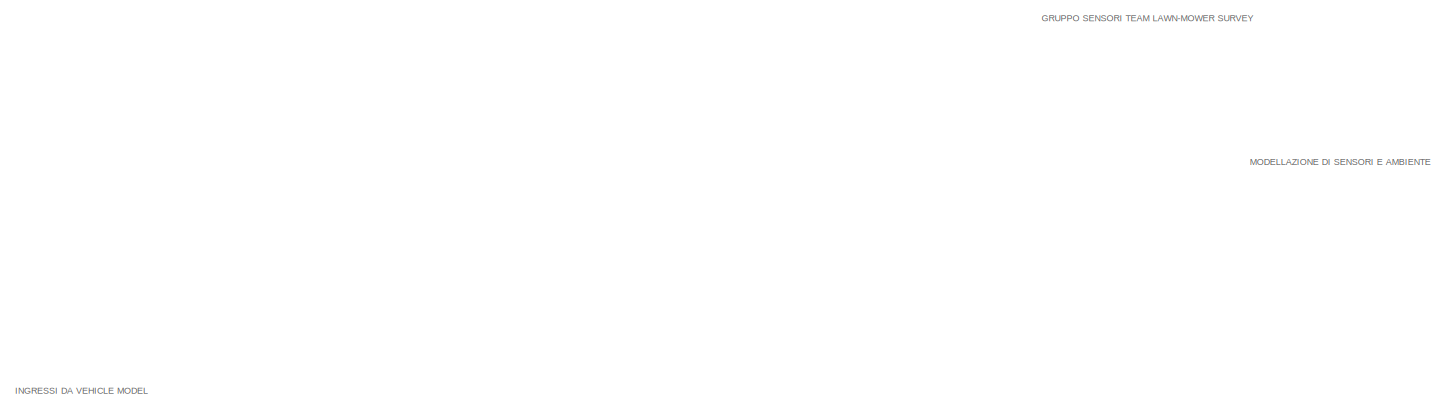
[diagram: root canvas - part 1/7, top left region]
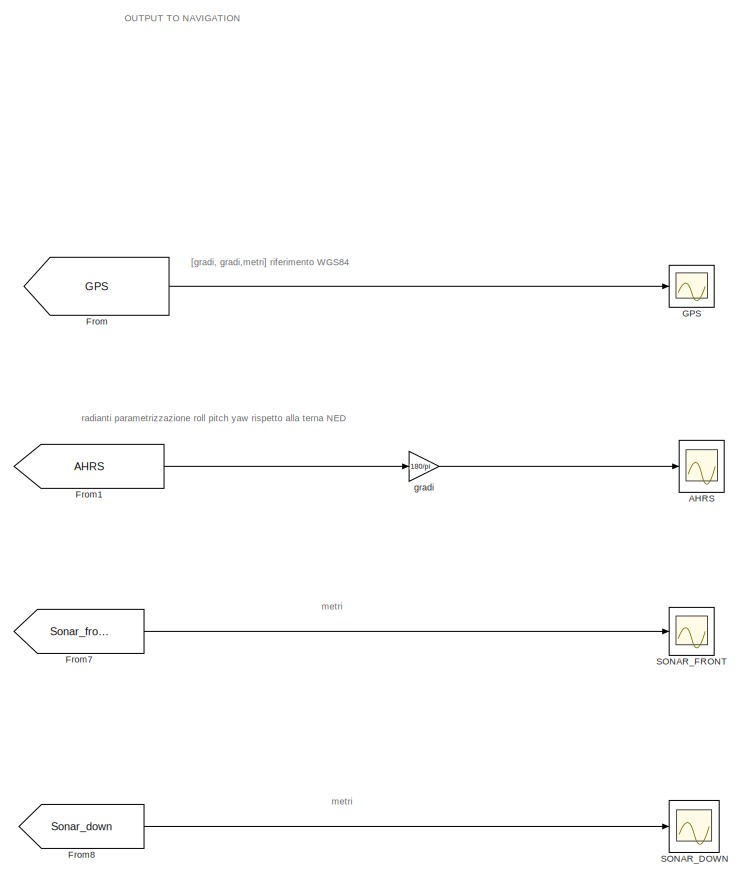
[diagram: root canvas - part 2/7, top right region]
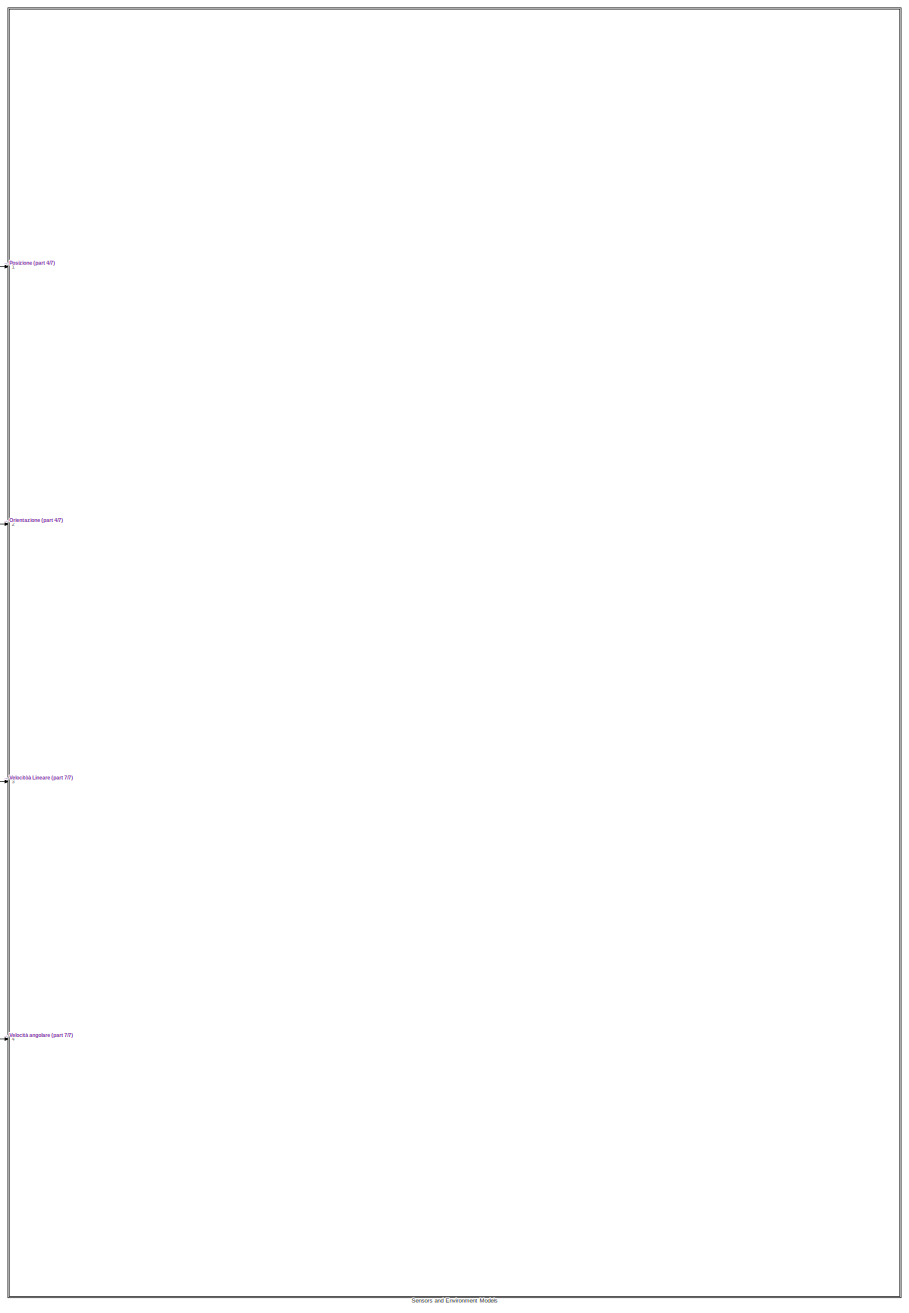
[diagram: root canvas - part 3/7, center side, full height]
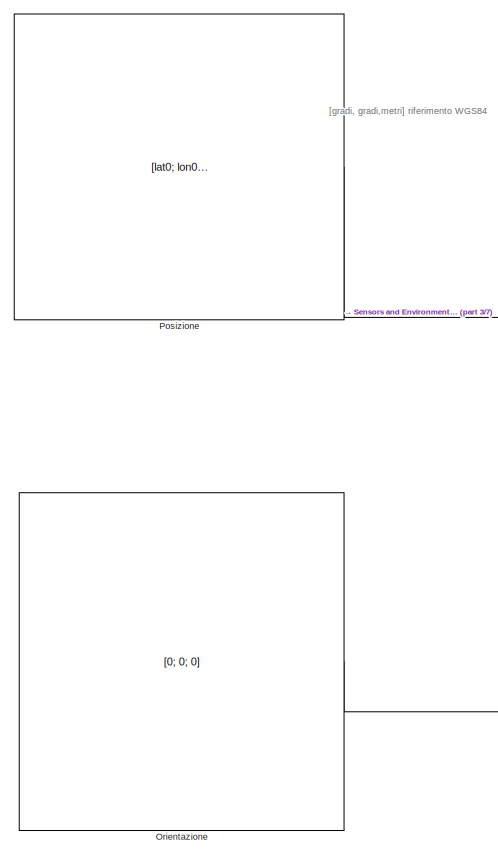
[diagram: root canvas - part 4/7, middle left region]
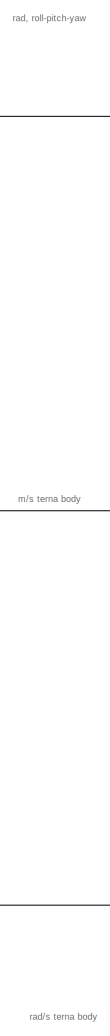
[diagram: root canvas - part 5/7, bottom left region]
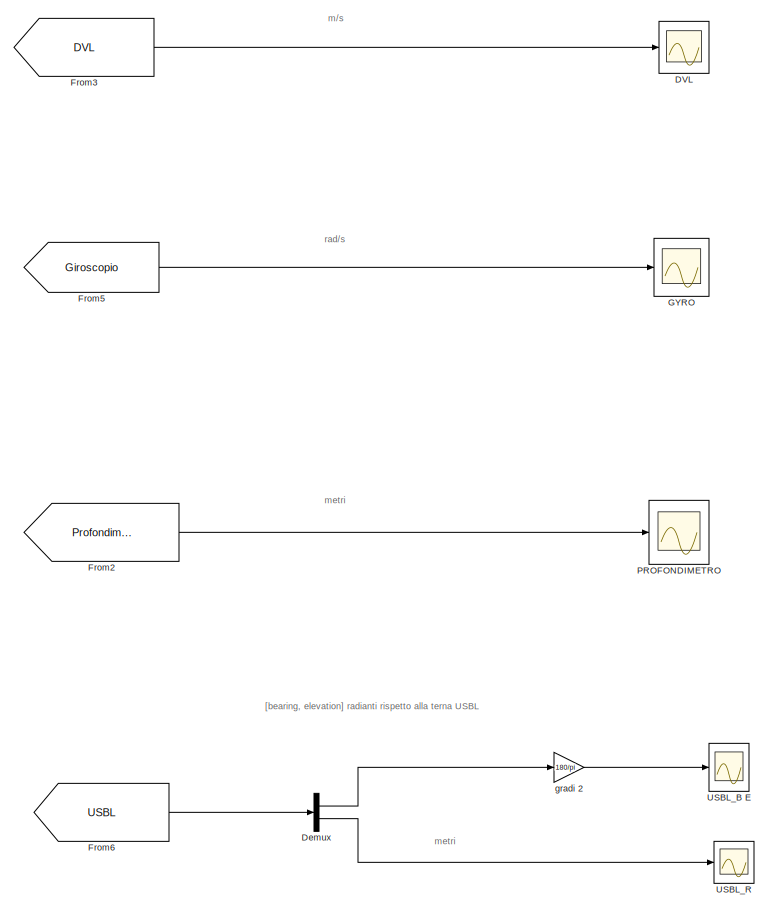
[diagram: root canvas - part 6/7, bottom right region]
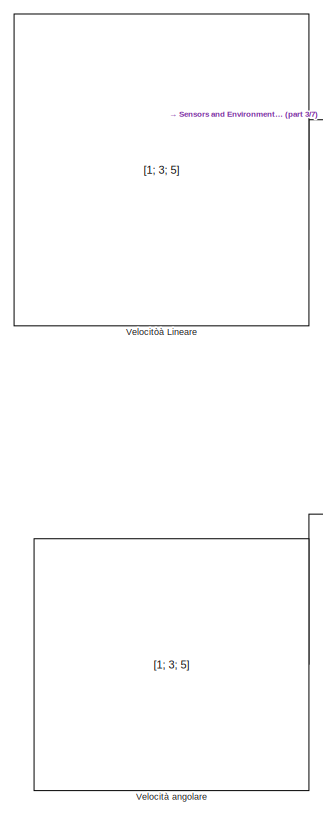
[diagram: root canvas - part 7/7, bottom left region]
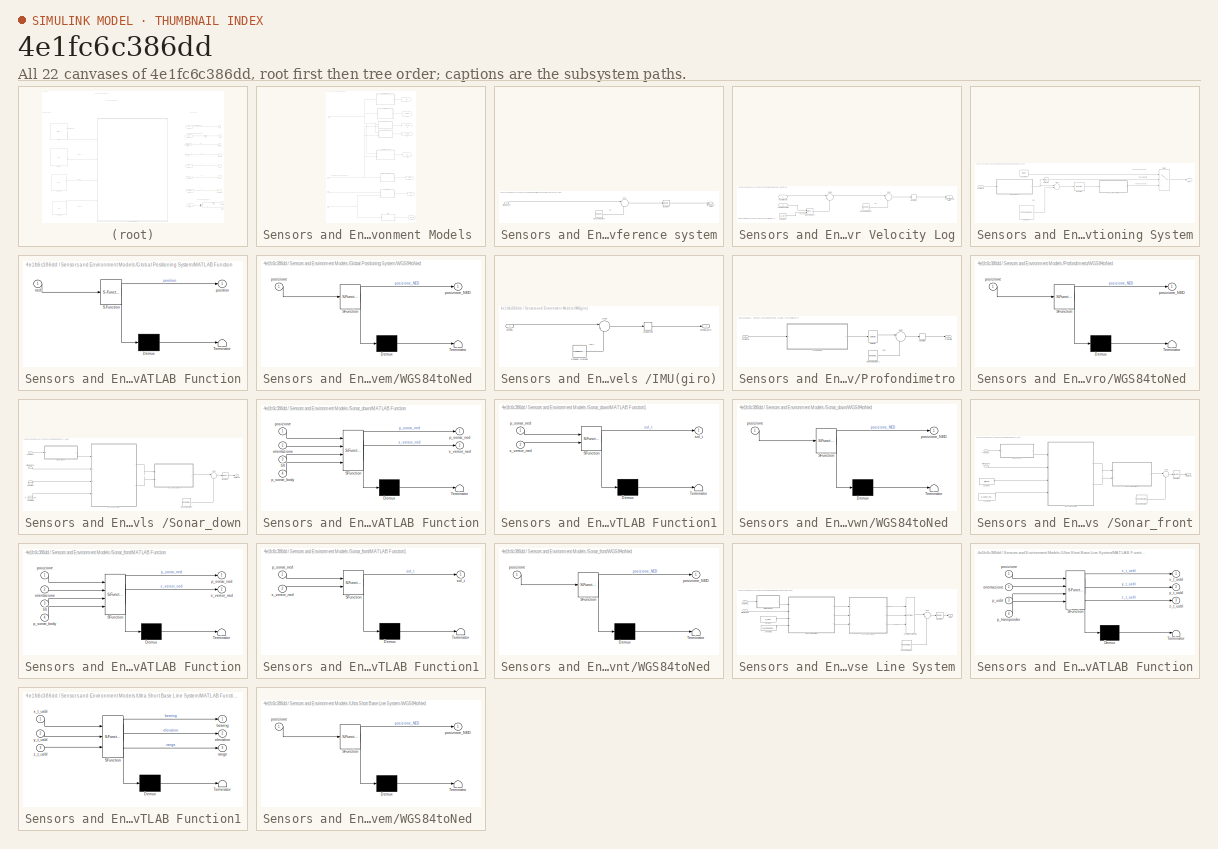
[diagram: thumbnail index - all 22 canvases of the model, root first then tree order]
MODEL slx_4e1fc6c386dd
KIND model
CONFIG AbsTol = auto
CONFIG EnableMultiTasking = on
CONFIG FixedStep = 0.1
CONFIG MaxStep = auto
CONFIG MinStep = auto
CONFIG RelTol = 1e-3
CONFIG SampleTimeConstraint = Unconstrained
CONFIG Solver = VariableStepAuto
CONFIG SolverName = VariableStepAuto
CONFIG StartTime = 0.0
CONFIG StopTime = 5
BLOCK [Constant]  Velocità angolare
  SampleTime = 0.1
  Value = [1; 3; 5]
  VectorParams1D = off
BLOCK [Scope] AHRS
  Floating = off
  NumInputPorts = 1
  Ports = [1]
  ScopeSpecificationString = Simulink.scopes.TimeScopeBlockCfg('CurrentConfiguration', extmgr.ConfigurationSet(extmgr.Configuration('Core','General UI',true),extmgr.Configuration('Core','Source UI',true),extmgr.Configuration('Sources','WiredSimulink',true,'DataLoggingVariableName','ScopeData5'),extmgr.Configuration('Visuals','Time Domain',true,'SerializedDisplays',{struct('MinYLimReal','-2.965','MaxYLimReal','2.685','YLabelRe...<+1495ch>
BLOCK [Scope] DVL
  Floating = off
  NumInputPorts = 1
  Ports = [1]
  ScopeSpecificationString = Simulink.scopes.TimeScopeBlockCfg('CurrentConfiguration', extmgr.ConfigurationSet(extmgr.Configuration('Core','General UI',true),extmgr.Configuration('Core','Source UI',true),extmgr.Configuration('Sources','WiredSimulink',true,'DataLoggingVariableName','ScopeData4'),extmgr.Configuration('Visuals','Time Domain',true,'SerializedDisplays',{struct('MinYLimReal','1.071','MaxYLimReal','4.781','YLabelRea...<+1438ch>
BLOCK [Demux] Demux
  DisplayOption = bar
  Outputs = 2
  Ports = [1, 2]
BLOCK [From] From
  GotoTag = GPS
  TagVisibility = global
BLOCK [From] From1
  GotoTag = AHRS
  TagVisibility = global
BLOCK [From] From2
  GotoTag = Profondimetro
  TagVisibility = global
BLOCK [From] From3
  GotoTag = DVL
  TagVisibility = global
BLOCK [From] From5
  GotoTag = Giroscopio
  TagVisibility = global
BLOCK [From] From6
  GotoTag = USBL
  TagVisibility = global
BLOCK [From] From7
  GotoTag = Sonar_front
  TagVisibility = global
BLOCK [From] From8
  GotoTag = Sonar_down
  TagVisibility = global
BLOCK [Scope] GPS
  Floating = off
  NumInputPorts = 1
  Ports = [1]
  ScopeSpecificationString = Simulink.scopes.TimeScopeBlockCfg('CurrentConfiguration', extmgr.ConfigurationSet(extmgr.Configuration('Core','General UI',true),extmgr.Configuration('Core','Source UI',true),extmgr.Configuration('Sources','WiredSimulink',true,'DataLoggingVariableName','ScopeData8'),extmgr.Configuration('Visuals','Time Domain',true,'SerializedDisplays',{struct('MinYLimReal','-8.02723','MaxYLimReal','47.91165','YLa...<+1519ch>
BLOCK [Scope] GYRO
  Floating = off
  NumInputPorts = 1
  Ports = [1]
  ScopeSpecificationString = Simulink.scopes.TimeScopeBlockCfg('CurrentConfiguration', extmgr.ConfigurationSet(extmgr.Configuration('Core','General UI',true),extmgr.Configuration('Core','Source UI',true),extmgr.Configuration('Sources','WiredSimulink',true,'DataLoggingVariableName','ScopeData3'),extmgr.Configuration('Visuals','Time Domain',true,'SerializedDisplays',{struct('MinYLimReal','0.48786','MaxYLimReal','5.51223','YLabe...<+1465ch>
BLOCK [Constant] Orientazione
  SampleTime = 0.1
  Value = [0; 0; 0]
  VectorParams1D = off
BLOCK [Scope] PROFONDIMETRO
  Floating = off
  NumInputPorts = 1
  Ports = [1]
  ScopeSpecificationString = Simulink.scopes.TimeScopeBlockCfg('CurrentConfiguration', extmgr.ConfigurationSet(extmgr.Configuration('Core','General UI',true),extmgr.Configuration('Core','Source UI',true),extmgr.Configuration('Sources','WiredSimulink',true,'DataLoggingVariableName','ScopeData2'),extmgr.Configuration('Visuals','Time Domain',true,'SerializedDisplays',{struct('MinYLimReal','-0.17125','MaxYLimReal','0.14125','YLab...<+1397ch>
BLOCK [Constant] Posizione
  Value = [lat0; lon0; h0]
  VectorParams1D = off
BLOCK [Scope] SONAR_DOWN
  Floating = off
  NumInputPorts = 1
  Ports = [1]
  ScopeSpecificationString = Simulink.scopes.TimeScopeBlockCfg('CurrentConfiguration', extmgr.ConfigurationSet(extmgr.Configuration('Core','General UI',true),extmgr.Configuration('Core','Source UI',true),extmgr.Configuration('Sources','WiredSimulink',true,'DataLoggingVariableName','ScopeData7'),extmgr.Configuration('Visuals','Time Domain',true,'SerializedDisplays',{struct('MinYLimReal','36.4725','MaxYLimReal','37.0875','YLabe...<+1695ch>
BLOCK [Scope] SONAR_FRONT
  Floating = off
  NumInputPorts = 1
  Ports = [1]
  ScopeSpecificationString = Simulink.scopes.TimeScopeBlockCfg('CurrentConfiguration', extmgr.ConfigurationSet(extmgr.Configuration('Core','General UI',true),extmgr.Configuration('Core','Source UI',true),extmgr.Configuration('Sources','WiredSimulink',true,'DataLoggingVariableName','ScopeData6'),extmgr.Configuration('Visuals','Time Domain',true,'SerializedDisplays',{struct('MinYLimReal','51.28725','MaxYLimReal','51.89475','YLa...<+1401ch>
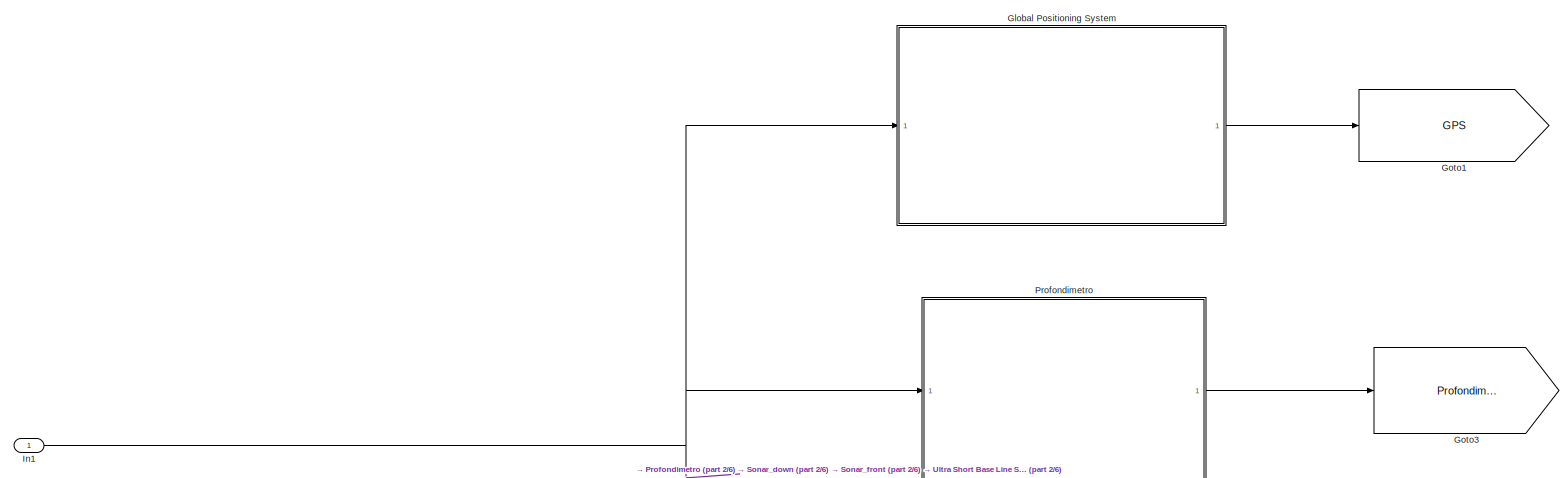
[diagram: Sensors and Environment Models  - part 1/6, full width, top band]
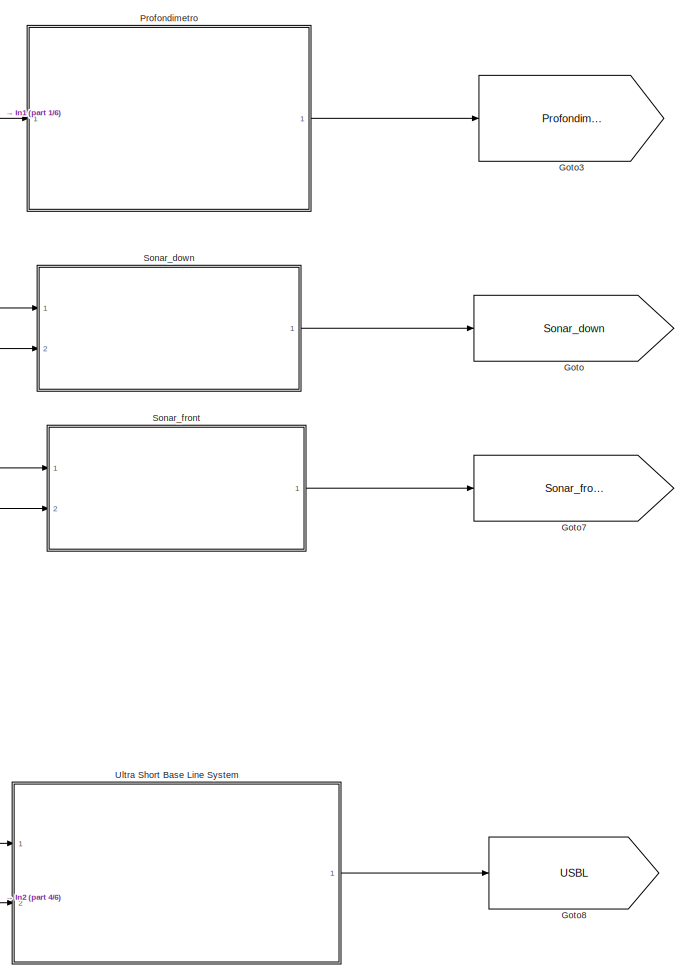
[diagram: Sensors and Environment Models  - part 2/6, top right region]
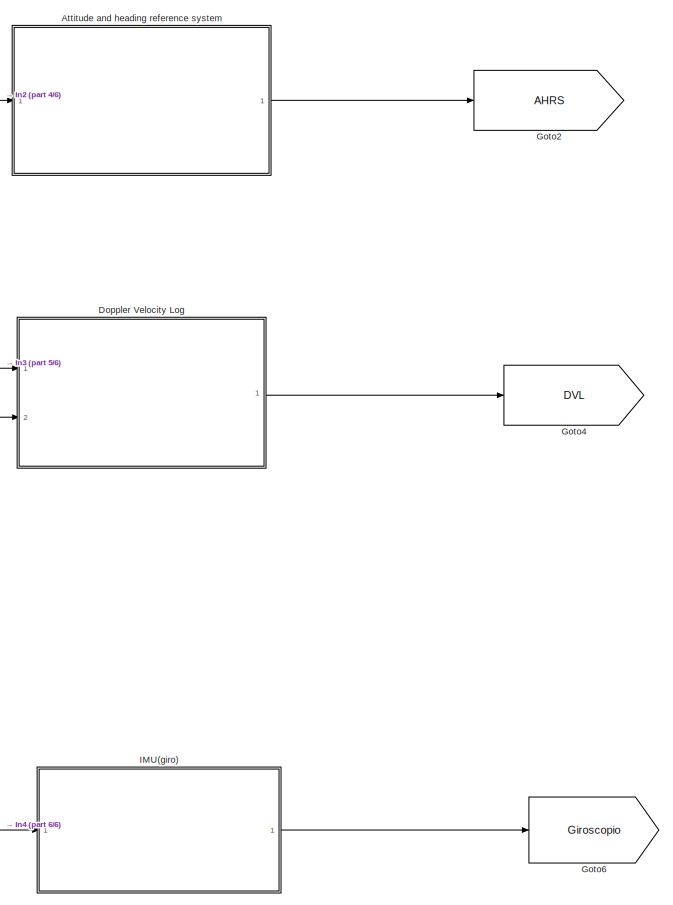
[diagram: Sensors and Environment Models  - part 3/6, bottom right region]
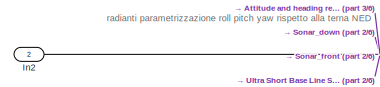
[diagram: Sensors and Environment Models  - part 4/6, middle left region]
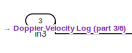
[diagram: Sensors and Environment Models  - part 5/6, bottom left region]
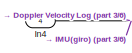
[diagram: Sensors and Environment Models  - part 6/6, bottom left region]
BLOCK [SubSystem] Sensors and Environment Models 
  Ports = [4]
  RequestExecContextInheritance = off
BLOCK [SubSystem] Sensors and Environment Models /Attitude and heading reference system
  Ports = [1, 1]
  RequestExecContextInheritance = off
BLOCK [Inport] Sensors and Environment Models /Attitude and heading reference system/Orientazione
  IconDisplay = Port number
  SampleTime = Ts_ahrs
BLOCK [Outport] Sensors and Environment Models /Attitude and heading reference system/Orientazione_AHRS
  IconDisplay = Port number
BLOCK [Quantizer] Sensors and Environment Models /Attitude and heading reference system/Quantizer
  QuantizationInterval = res_ahrs
BLOCK [RandomNumber] Sensors and Environment Models /Attitude and heading reference system/Random Number
  SampleTime = Ts_ahrs
  Seed = [26; 78; 90]
  Variance = var_ahrs
  VectorParams1D = off
BLOCK [Sum] Sensors and Environment Models /Attitude and heading reference system/Sum
  IconShape = round
  InputSameDT = off
  Inputs = |++
  OutDataTypeStr = Inherit: Inherit via internal rule
  Ports = [2, 1]
  SaturateOnIntegerOverflow = off
BLOCK [SubSystem] Sensors and Environment Models /Doppler Velocity Log
  Ports = [2, 1]
  RequestExecContextInheritance = off
BLOCK [Constant] Sensors and Environment Models /Doppler Velocity Log/Constant
  Value = p_dvl
  VectorParams1D = off
BLOCK [Reference] Sensors and Environment Models /Doppler Velocity Log/Cross Product  REF=vrlib/Utilities/Cross Product
  Ports = [2, 1]
  SourceBlock = vrlib/Utilities/Cross Product
  SourceProductBaseCode = VR
  SourceProductName = Simulink 3D Animation
  SourceType = Cross Product
BLOCK [Quantizer] Sensors and Environment Models /Doppler Velocity Log/Quantizer
  QuantizationInterval = res_dvl
BLOCK [RandomNumber] Sensors and Environment Models /Doppler Velocity Log/Random Number
  SampleTime = Ts_dvl
  Seed = [21, 68, 10]
  Variance = var_dvl
BLOCK [Sum] Sensors and Environment Models /Doppler Velocity Log/Sum
  IconShape = round
  InputSameDT = off
  Inputs = |++
  OutDataTypeStr = Inherit: Inherit via internal rule
  Ports = [2, 1]
  SaturateOnIntegerOverflow = off
BLOCK [Sum] Sensors and Environment Models /Doppler Velocity Log/Sum1
  IconShape = round
  InputSameDT = off
  Inputs = |++
  OutDataTypeStr = Inherit: Inherit via internal rule
  Ports = [2, 1]
  SaturateOnIntegerOverflow = off
BLOCK [Inport] Sensors and Environment Models /Doppler Velocity Log/Velocità lineare
  IconDisplay = Port number
  SampleTime = Ts_dvl
BLOCK [Inport] Sensors and Environment Models /Doppler Velocity Log/velocità angolare
  IconDisplay = Port number
  Port = 2
  SampleTime = Ts_dvl
BLOCK [Outport] Sensors and Environment Models /Doppler Velocity Log/velocità lineare DVL
  IconDisplay = Port number
BLOCK [SubSystem] Sensors and Environment Models /Global Positioning System
  Ports = [1, 1]
  RequestExecContextInheritance = off
BLOCK [Constant] Sensors and Environment Models /Global Positioning System/Constant
  Value = [0;0;0]
  VectorParams1D = off
BLOCK [Outport] Sensors and Environment Models /Global Positioning System/GPS
  IconDisplay = Port number
BLOCK [SubSystem] Sensors and Environment Models /Global Positioning System/MATLAB Function
  ErrorFcn = Stateflow.Translate.translate
  PermitHierarchicalResolution = ExplicitOnly
  Ports = [1, 1]
  RequestExecContextInheritance = off
  SFBlockType = MATLAB Function
  TreatAsAtomicUnit = on
BLOCK [Demux] Sensors and Environment Models /Global Positioning System/MATLAB Function/ Demux 
  Outputs = 1
  Ports = [1, 1]
BLOCK [S-Function] Sensors and Environment Models /Global Positioning System/MATLAB Function/ SFunction 
  EnableBusSupport = on
  FunctionName = sf_sfun
  PortCounts = [1 2]
  Ports = [1, 2]
  SFcnIsStateOwnerBlock = off
  SFunctionDeploymentMode = off
  Tag = Stateflow S-Function simusink 1
BLOCK [Terminator] Sensors and Environment Models /Global Positioning System/MATLAB Function/ Terminator 
BLOCK [Inport] Sensors and Environment Models /Global Positioning System/MATLAB Function/ned
  IconDisplay = Port number
BLOCK [Outport] Sensors and Environment Models /Global Positioning System/MATLAB Function/position
  IconDisplay = Port number
BLOCK [Inport] Sensors and Environment Models /Global Positioning System/Posizione
  IconDisplay = Port number
  SampleTime = Ts_gps
BLOCK [Quantizer] Sensors and Environment Models /Global Positioning System/Quantizer
  QuantizationInterval = res_gps
BLOCK [Selector] Sensors and Environment Models /Global Positioning System/Selector
  IndexOptions = Index vector (dialog)
  Indices = [3]
  InputPortWidth = 3
  OutputSizes = 1
  Ports = [1, 1]
BLOCK [Sum] Sensors and Environment Models /Global Positioning System/Sum
  InputSameDT = off
  Inputs = |++
  OutDataTypeStr = Inherit: Inherit via internal rule
  Ports = [2, 1]
  SaturateOnIntegerOverflow = off
BLOCK [Switch] Sensors and Environment Models /Global Positioning System/Switch
  Criteria = u2 > Threshold
  InputSameDT = off
  SaturateOnIntegerOverflow = off
  Threshold = 0.30
BLOCK [SubSystem] Sensors and Environment Models /Global Positioning System/WGS84toNed 
  ErrorFcn = Stateflow.Translate.translate
  PermitHierarchicalResolution = ExplicitOnly
  Ports = [1, 1]
  RequestExecContextInheritance = off
  SFBlockType = MATLAB Function
  TreatAsAtomicUnit = on
BLOCK [Demux] Sensors and Environment Models /Global Positioning System/WGS84toNed / Demux 
  Outputs = 1
  Ports = [1, 1]
BLOCK [S-Function] Sensors and Environment Models /Global Positioning System/WGS84toNed / SFunction 
  EnableBusSupport = on
  FunctionName = sf_sfun
  PortCounts = [1 2]
  Ports = [1, 2]
  SFcnIsStateOwnerBlock = off
  SFunctionDeploymentMode = off
  Tag = Stateflow S-Function simusink 2
BLOCK [Terminator] Sensors and Environment Models /Global Positioning System/WGS84toNed / Terminator 
BLOCK [Inport] Sensors and Environment Models /Global Positioning System/WGS84toNed /posizione
  IconDisplay = Port number
BLOCK [Outport] Sensors and Environment Models /Global Positioning System/WGS84toNed /posizione_NED
  IconDisplay = Port number
BLOCK [RandomNumber] Sensors and Environment Models /Global Positioning System/rumore GPS
  SampleTime = Ts_gps
  Seed = [18;40;93]
  Variance = var_gps
  VectorParams1D = off
BLOCK [Goto] Sensors and Environment Models /Goto
  GotoTag = Sonar_down
  TagVisibility = global
BLOCK [Goto] Sensors and Environment Models /Goto1
  GotoTag = GPS
  TagVisibility = global
BLOCK [Goto] Sensors and Environment Models /Goto2
  GotoTag = AHRS
  TagVisibility = global
BLOCK [Goto] Sensors and Environment Models /Goto3
  GotoTag = Profondimetro
  TagVisibility = global
BLOCK [Goto] Sensors and Environment Models /Goto4
  GotoTag = DVL
  TagVisibility = global
BLOCK [Goto] Sensors and Environment Models /Goto6
  GotoTag = Giroscopio
  TagVisibility = global
BLOCK [Goto] Sensors and Environment Models /Goto7
  GotoTag = Sonar_front
  TagVisibility = global
BLOCK [Goto] Sensors and Environment Models /Goto8
  GotoTag = USBL
  TagVisibility = global
BLOCK [SubSystem] Sensors and Environment Models /IMU(giro)
  Ports = [1, 1]
  RequestExecContextInheritance = off
BLOCK [Quantizer] Sensors and Environment Models /IMU(giro)/Quantizer
  QuantizationInterval = res_giroscopio
BLOCK [RandomNumber] Sensors and Environment Models /IMU(giro)/Random Number
  SampleTime = Ts_giroscopio
  Seed = [1; 5; 3]
  Variance = var_giroscopio
  VectorParams1D = off
BLOCK [Sum] Sensors and Environment Models /IMU(giro)/Sum
  IconShape = round
  InputSameDT = off
  Inputs = |++
  OutDataTypeStr = Inherit: Inherit via internal rule
  Ports = [2, 1]
  SaturateOnIntegerOverflow = off
BLOCK [Inport] Sensors and Environment Models /IMU(giro)/omega
  IconDisplay = Port number
  SampleTime = Ts_giroscopio
BLOCK [Outport] Sensors and Environment Models /IMU(giro)/omega_giro
  IconDisplay = Port number
BLOCK [Inport] Sensors and Environment Models /In1
  IconDisplay = Port number
BLOCK [Inport] Sensors and Environment Models /In2
  IconDisplay = Port number
  Port = 2
BLOCK [Inport] Sensors and Environment Models /In3
  IconDisplay = Port number
  Port = 3
BLOCK [Inport] Sensors and Environment Models /In4
  IconDisplay = Port number
  Port = 4
BLOCK [SubSystem] Sensors and Environment Models /Profondimetro
  Ports = [1, 1]
  RequestExecContextInheritance = off
BLOCK [Inport] Sensors and Environment Models /Profondimetro/Posizione
  IconDisplay = Port number
  SampleTime = Ts_profondimetro
BLOCK [Outport] Sensors and Environment Models /Profondimetro/Profondità
  IconDisplay = Port number
BLOCK [Quantizer] Sensors and Environment Models /Profondimetro/Quantizer
  QuantizationInterval = res_profondimetro
BLOCK [RandomNumber] Sensors and Environment Models /Profondimetro/Random Number1
  SampleTime = Ts_profondimetro
  Seed = 85
  Variance = var_profondimetro
  VectorParams1D = off
BLOCK [Selector] Sensors and Environment Models /Profondimetro/Selector
  IndexOptions = Index vector (dialog)
  Indices = [ 3]
  InputPortWidth = 3
  OutputSizes = 1
  Ports = [1, 1]
BLOCK [Sum] Sensors and Environment Models /Profondimetro/Sum1
  IconShape = round
  InputSameDT = off
  Inputs = |++
  OutDataTypeStr = Inherit: Inherit via internal rule
  Ports = [2, 1]
  SaturateOnIntegerOverflow = off
BLOCK [SubSystem] Sensors and Environment Models /Profondimetro/WGS84toNed 
  ErrorFcn = Stateflow.Translate.translate
  PermitHierarchicalResolution = ExplicitOnly
  Ports = [1, 1]
  RequestExecContextInheritance = off
  SFBlockType = MATLAB Function
  TreatAsAtomicUnit = on
BLOCK [Demux] Sensors and Environment Models /Profondimetro/WGS84toNed / Demux 
  Outputs = 1
  Ports = [1, 1]
BLOCK [S-Function] Sensors and Environment Models /Profondimetro/WGS84toNed / SFunction 
  EnableBusSupport = on
  FunctionName = sf_sfun
  PortCounts = [1 2]
  Ports = [1, 2]
  SFcnIsStateOwnerBlock = off
  SFunctionDeploymentMode = off
  Tag = Stateflow S-Function simusink 3
BLOCK [Terminator] Sensors and Environment Models /Profondimetro/WGS84toNed / Terminator 
BLOCK [Inport] Sensors and Environment Models /Profondimetro/WGS84toNed /posizione
  IconDisplay = Port number
BLOCK [Outport] Sensors and Environment Models /Profondimetro/WGS84toNed /posizione_NED
  IconDisplay = Port number
BLOCK [SubSystem] Sensors and Environment Models /Sonar_down
  Ports = [2, 1]
  RequestExecContextInheritance = off
BLOCK [Constant] Sensors and Environment Models /Sonar_down/Constant
  SampleTime = Ts_sonar_down
  Value = tilt_down
  VectorParams1D = off
BLOCK [Constant] Sensors and Environment Models /Sonar_down/Constant1
  SampleTime = Ts_sonar_down
  Value = p_sonar_down
  VectorParams1D = off
BLOCK [Outport] Sensors and Environment Models /Sonar_down/Distanza
  IconDisplay = Port number
BLOCK [SubSystem] Sensors and Environment Models /Sonar_down/MATLAB Function
  ErrorFcn = Stateflow.Translate.translate
  PermitHierarchicalResolution = ExplicitOnly
  Ports = [4, 2]
  RequestExecContextInheritance = off
  SFBlockType = MATLAB Function
  TreatAsAtomicUnit = on
BLOCK [Demux] Sensors and Environment Models /Sonar_down/MATLAB Function/ Demux 
  Outputs = 1
  Ports = [1, 1]
BLOCK [S-Function] Sensors and Environment Models /Sonar_down/MATLAB Function/ SFunction 
  EnableBusSupport = on
  FunctionName = sf_sfun
  PortCounts = [4 3]
  Ports = [4, 3]
  SFcnIsStateOwnerBlock = off
  SFunctionDeploymentMode = off
  Tag = Stateflow S-Function simusink 4
BLOCK [Terminator] Sensors and Environment Models /Sonar_down/MATLAB Function/ Terminator 
BLOCK [Inport] Sensors and Environment Models /Sonar_down/MATLAB Function/orientazione
  IconDisplay = Port number
  Port = 2
BLOCK [Inport] Sensors and Environment Models /Sonar_down/MATLAB Function/p_sonar_body
  IconDisplay = Port number
  Port = 4
BLOCK [Outport] Sensors and Environment Models /Sonar_down/MATLAB Function/p_sonar_ned
  IconDisplay = Port number
BLOCK [Inport] Sensors and Environment Models /Sonar_down/MATLAB Function/posizione
  IconDisplay = Port number
BLOCK [Outport] Sensors and Environment Models /Sonar_down/MATLAB Function/s_versor_ned
  IconDisplay = Port number
  Port = 2
BLOCK [Inport] Sensors and Environment Models /Sonar_down/MATLAB Function/tilt
  IconDisplay = Port number
  Port = 3
BLOCK [SubSystem] Sensors and Environment Models /Sonar_down/MATLAB Function1
  ErrorFcn = Stateflow.Translate.translate
  PermitHierarchicalResolution = ExplicitOnly
  Ports = [2, 1]
  RequestExecContextInheritance = off
  SFBlockType = MATLAB Function
  TreatAsAtomicUnit = on
BLOCK [Demux] Sensors and Environment Models /Sonar_down/MATLAB Function1/ Demux 
  Outputs = 1
  Ports = [1, 1]
BLOCK [S-Function] Sensors and Environment Models /Sonar_down/MATLAB Function1/ SFunction 
  EnableBusSupport = on
  FunctionName = sf_sfun
  PortCounts = [2 2]
  Ports = [2, 2]
  SFcnIsStateOwnerBlock = off
  SFunctionDeploymentMode = off
  Tag = Stateflow S-Function simusink 5
BLOCK [Terminator] Sensors and Environment Models /Sonar_down/MATLAB Function1/ Terminator 
BLOCK [Inport] Sensors and Environment Models /Sonar_down/MATLAB Function1/p_sonar_ned
  IconDisplay = Port number
BLOCK [Inport] Sensors and Environment Models /Sonar_down/MATLAB Function1/s_versor_ned
  IconDisplay = Port number
  Port = 2
BLOCK [Outport] Sensors and Environment Models /Sonar_down/MATLAB Function1/sol_t
  IconDisplay = Port number
BLOCK [Inport] Sensors and Environment Models /Sonar_down/Orientazione
  IconDisplay = Port number
  Port = 2
  SampleTime = Ts_sonar_down
BLOCK [Inport] Sensors and Environment Models /Sonar_down/Posizione
  IconDisplay = Port number
  SampleTime = Ts_sonar_down
BLOCK [Quantizer] Sensors and Environment Models /Sonar_down/Quantizer
  QuantizationInterval = res_sonar_down
BLOCK [RandomNumber] Sensors and Environment Models /Sonar_down/Random Number
  SampleTime = Ts_sonar_down
  Variance = var_sonar_down
  VectorParams1D = off
BLOCK [Sum] Sensors and Environment Models /Sonar_down/Sum
  IconShape = round
  InputSameDT = off
  Inputs = |++
  OutDataTypeStr = Inherit: Inherit via internal rule
  Ports = [2, 1]
  SaturateOnIntegerOverflow = off
BLOCK [SubSystem] Sensors and Environment Models /Sonar_down/WGS84toNed 
  ErrorFcn = Stateflow.Translate.translate
  PermitHierarchicalResolution = ExplicitOnly
  Ports = [1, 1]
  RequestExecContextInheritance = off
  SFBlockType = MATLAB Function
  TreatAsAtomicUnit = on
BLOCK [Demux] Sensors and Environment Models /Sonar_down/WGS84toNed / Demux 
  Outputs = 1
  Ports = [1, 1]
BLOCK [S-Function] Sensors and Environment Models /Sonar_down/WGS84toNed / SFunction 
  EnableBusSupport = on
  FunctionName = sf_sfun
  PortCounts = [1 2]
  Ports = [1, 2]
  SFcnIsStateOwnerBlock = off
  SFunctionDeploymentMode = off
  Tag = Stateflow S-Function simusink 6
BLOCK [Terminator] Sensors and Environment Models /Sonar_down/WGS84toNed / Terminator 
BLOCK [Inport] Sensors and Environment Models /Sonar_down/WGS84toNed /posizione
  IconDisplay = Port number
BLOCK [Outport] Sensors and Environment Models /Sonar_down/WGS84toNed /posizione_NED
  IconDisplay = Port number
BLOCK [SubSystem] Sensors and Environment Models /Sonar_front
  Ports = [2, 1]
  RequestExecContextInheritance = off
BLOCK [Constant] Sensors and Environment Models /Sonar_front/Constant
  SampleTime = Ts_sonar_front
  Value = tilt_front
  VectorParams1D = off
BLOCK [Constant] Sensors and Environment Models /Sonar_front/Constant1
  SampleTime = Ts_sonar_front
  Value = p_sonar_front
  VectorParams1D = off
BLOCK [Outport] Sensors and Environment Models /Sonar_front/Distanza
  IconDisplay = Port number
BLOCK [SubSystem] Sensors and Environment Models /Sonar_front/MATLAB Function
  ErrorFcn = Stateflow.Translate.translate
  PermitHierarchicalResolution = ExplicitOnly
  Ports = [4, 2]
  RequestExecContextInheritance = off
  SFBlockType = MATLAB Function
  TreatAsAtomicUnit = on
BLOCK [Demux] Sensors and Environment Models /Sonar_front/MATLAB Function/ Demux 
  Outputs = 1
  Ports = [1, 1]
BLOCK [S-Function] Sensors and Environment Models /Sonar_front/MATLAB Function/ SFunction 
  EnableBusSupport = on
  FunctionName = sf_sfun
  PortCounts = [4 3]
  Ports = [4, 3]
  SFcnIsStateOwnerBlock = off
  SFunctionDeploymentMode = off
  Tag = Stateflow S-Function simusink 7
BLOCK [Terminator] Sensors and Environment Models /Sonar_front/MATLAB Function/ Terminator 
BLOCK [Inport] Sensors and Environment Models /Sonar_front/MATLAB Function/orientazione
  IconDisplay = Port number
  Port = 2
BLOCK [Inport] Sensors and Environment Models /Sonar_front/MATLAB Function/p_sonar_body
  IconDisplay = Port number
  Port = 4
BLOCK [Outport] Sensors and Environment Models /Sonar_front/MATLAB Function/p_sonar_ned
  IconDisplay = Port number
BLOCK [Inport] Sensors and Environment Models /Sonar_front/MATLAB Function/posizione
  IconDisplay = Port number
BLOCK [Outport] Sensors and Environment Models /Sonar_front/MATLAB Function/s_versor_ned
  IconDisplay = Port number
  Port = 2
BLOCK [Inport] Sensors and Environment Models /Sonar_front/MATLAB Function/tilt
  IconDisplay = Port number
  Port = 3
BLOCK [SubSystem] Sensors and Environment Models /Sonar_front/MATLAB Function1
  ErrorFcn = Stateflow.Translate.translate
  PermitHierarchicalResolution = ExplicitOnly
  Ports = [2, 1]
  RequestExecContextInheritance = off
  SFBlockType = MATLAB Function
  TreatAsAtomicUnit = on
BLOCK [Demux] Sensors and Environment Models /Sonar_front/MATLAB Function1/ Demux 
  Outputs = 1
  Ports = [1, 1]
BLOCK [S-Function] Sensors and Environment Models /Sonar_front/MATLAB Function1/ SFunction 
  EnableBusSupport = on
  FunctionName = sf_sfun
  PortCounts = [2 2]
  Ports = [2, 2]
  SFcnIsStateOwnerBlock = off
  SFunctionDeploymentMode = off
  Tag = Stateflow S-Function simusink 8
BLOCK [Terminator] Sensors and Environment Models /Sonar_front/MATLAB Function1/ Terminator 
BLOCK [Inport] Sensors and Environment Models /Sonar_front/MATLAB Function1/p_sonar_ned
  IconDisplay = Port number
BLOCK [Inport] Sensors and Environment Models /Sonar_front/MATLAB Function1/s_versor_ned
  IconDisplay = Port number
  Port = 2
BLOCK [Outport] Sensors and Environment Models /Sonar_front/MATLAB Function1/sol_t
  IconDisplay = Port number
BLOCK [Inport] Sensors and Environment Models /Sonar_front/Orientazione
  IconDisplay = Port number
  Port = 2
  SampleTime = Ts_sonar_front
BLOCK [Inport] Sensors and Environment Models /Sonar_front/Posizione
  IconDisplay = Port number
  SampleTime = Ts_sonar_front
BLOCK [Quantizer] Sensors and Environment Models /Sonar_front/Quantizer
  QuantizationInterval = res_sonar_front
BLOCK [RandomNumber] Sensors and Environment Models /Sonar_front/Random Number
  SampleTime = Ts_sonar_front
  Variance = var_sonar_front
  VectorParams1D = off
BLOCK [Sum] Sensors and Environment Models /Sonar_front/Sum
  IconShape = round
  InputSameDT = off
  Inputs = |++
  OutDataTypeStr = Inherit: Inherit via internal rule
  Ports = [2, 1]
  SaturateOnIntegerOverflow = off
BLOCK [SubSystem] Sensors and Environment Models /Sonar_front/WGS84toNed 
  ErrorFcn = Stateflow.Translate.translate
  PermitHierarchicalResolution = ExplicitOnly
  Ports = [1, 1]
  RequestExecContextInheritance = off
  SFBlockType = MATLAB Function
  TreatAsAtomicUnit = on
BLOCK [Demux] Sensors and Environment Models /Sonar_front/WGS84toNed / Demux 
  Outputs = 1
  Ports = [1, 1]
BLOCK [S-Function] Sensors and Environment Models /Sonar_front/WGS84toNed / SFunction 
  EnableBusSupport = on
  FunctionName = sf_sfun
  PortCounts = [1 2]
  Ports = [1, 2]
  SFcnIsStateOwnerBlock = off
  SFunctionDeploymentMode = off
  Tag = Stateflow S-Function simusink 9
BLOCK [Terminator] Sensors and Environment Models /Sonar_front/WGS84toNed / Terminator 
BLOCK [Inport] Sensors and Environment Models /Sonar_front/WGS84toNed /posizione
  IconDisplay = Port number
BLOCK [Outport] Sensors and Environment Models /Sonar_front/WGS84toNed /posizione_NED
  IconDisplay = Port number
BLOCK [SubSystem] Sensors and Environment Models /Ultra Short Base Line System
  Ports = [2, 1]
  RequestExecContextInheritance = off
BLOCK [Outport] Sensors and Environment Models /Ultra Short Base Line System/BER
  IconDisplay = Port number
BLOCK [Constant] Sensors and Environment Models /Ultra Short Base Line System/Constant
  Value = p_usbl
  VectorParams1D = off
BLOCK [Constant] Sensors and Environment Models /Ultra Short Base Line System/Constant1
  Value = p_transponder
  VectorParams1D = off
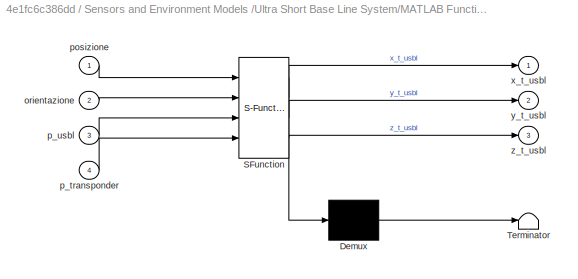
BLOCK [SubSystem] Sensors and Environment Models /Ultra Short Base Line System/MATLAB Function
  ErrorFcn = Stateflow.Translate.translate
  PermitHierarchicalResolution = ExplicitOnly
  Ports = [4, 3]
  RequestExecContextInheritance = off
  SFBlockType = MATLAB Function
  TreatAsAtomicUnit = on
BLOCK [Demux] Sensors and Environment Models /Ultra Short Base Line System/MATLAB Function/ Demux 
  Outputs = 1
  Ports = [1, 1]
BLOCK [S-Function] Sensors and Environment Models /Ultra Short Base Line System/MATLAB Function/ SFunction 
  EnableBusSupport = on
  FunctionName = sf_sfun
  PortCounts = [4 4]
  Ports = [4, 4]
  SFcnIsStateOwnerBlock = off
  SFunctionDeploymentMode = off
  Tag = Stateflow S-Function simusink 10
BLOCK [Terminator] Sensors and Environment Models /Ultra Short Base Line System/MATLAB Function/ Terminator 
BLOCK [Inport] Sensors and Environment Models /Ultra Short Base Line System/MATLAB Function/orientazione
  IconDisplay = Port number
  Port = 2
BLOCK [Inport] Sensors and Environment Models /Ultra Short Base Line System/MATLAB Function/p_transponder
  IconDisplay = Port number
  Port = 4
BLOCK [Inport] Sensors and Environment Models /Ultra Short Base Line System/MATLAB Function/p_usbl
  IconDisplay = Port number
  Port = 3
BLOCK [Inport] Sensors and Environment Models /Ultra Short Base Line System/MATLAB Function/posizione
  IconDisplay = Port number
BLOCK [Outport] Sensors and Environment Models /Ultra Short Base Line System/MATLAB Function/x_t_usbl
  IconDisplay = Port number
BLOCK [Outport] Sensors and Environment Models /Ultra Short Base Line System/MATLAB Function/y_t_usbl
  IconDisplay = Port number
  Port = 2
BLOCK [Outport] Sensors and Environment Models /Ultra Short Base Line System/MATLAB Function/z_t_usbl
  IconDisplay = Port number
  Port = 3
BLOCK [SubSystem] Sensors and Environment Models /Ultra Short Base Line System/MATLAB Function1
  ErrorFcn = Stateflow.Translate.translate
  PermitHierarchicalResolution = ExplicitOnly
  Ports = [3, 3]
  RequestExecContextInheritance = off
  SFBlockType = MATLAB Function
  TreatAsAtomicUnit = on
BLOCK [Demux] Sensors and Environment Models /Ultra Short Base Line System/MATLAB Function1/ Demux 
  Outputs = 1
  Ports = [1, 1]
BLOCK [S-Function] Sensors and Environment Models /Ultra Short Base Line System/MATLAB Function1/ SFunction 
  EnableBusSupport = on
  FunctionName = sf_sfun
  PortCounts = [3 4]
  Ports = [3, 4]
  SFcnIsStateOwnerBlock = off
  SFunctionDeploymentMode = off
  Tag = Stateflow S-Function simusink 11
BLOCK [Terminator] Sensors and Environment Models /Ultra Short Base Line System/MATLAB Function1/ Terminator 
BLOCK [Outport] Sensors and Environment Models /Ultra Short Base Line System/MATLAB Function1/bearing
  IconDisplay = Port number
BLOCK [Outport] Sensors and Environment Models /Ultra Short Base Line System/MATLAB Function1/elevation
  IconDisplay = Port number
  Port = 2
BLOCK [Outport] Sensors and Environment Models /Ultra Short Base Line System/MATLAB Function1/range
  IconDisplay = Port number
  Port = 3
BLOCK [Inport] Sensors and Environment Models /Ultra Short Base Line System/MATLAB Function1/x_t_usbl
  IconDisplay = Port number
BLOCK [Inport] Sensors and Environment Models /Ultra Short Base Line System/MATLAB Function1/y_t_usbl
  IconDisplay = Port number
  Port = 2
BLOCK [Inport] Sensors and Environment Models /Ultra Short Base Line System/MATLAB Function1/z_t_usbl
  IconDisplay = Port number
  Port = 3
BLOCK [Inport] Sensors and Environment Models /Ultra Short Base Line System/Orientazione
  IconDisplay = Port number
  Port = 2
  SampleTime = Ts_usbl
BLOCK [Inport] Sensors and Environment Models /Ultra Short Base Line System/Posizione
  IconDisplay = Port number
  SampleTime = Ts_usbl
BLOCK [Quantizer] Sensors and Environment Models /Ultra Short Base Line System/Quantizer
  QuantizationInterval = res_usbl
BLOCK [RandomNumber] Sensors and Environment Models /Ultra Short Base Line System/Random Number
  SampleTime = Ts_usbl
  Seed = [2; 4; 1]
  Variance = var_usbl
  VectorParams1D = off
BLOCK [Sum] Sensors and Environment Models /Ultra Short Base Line System/Sum
  IconShape = round
  InputSameDT = off
  Inputs = |++
  OutDataTypeStr = Inherit: Inherit via internal rule
  Ports = [2, 1]
  SaturateOnIntegerOverflow = off
BLOCK [Concatenate] Sensors and Environment Models /Ultra Short Base Line System/Vector Concatenate
  Mode = Multidimensional array
  NumInputs = 3
  Ports = [3, 1]
BLOCK [SubSystem] Sensors and Environment Models /Ultra Short Base Line System/WGS84toNed 
  ErrorFcn = Stateflow.Translate.translate
  PermitHierarchicalResolution = ExplicitOnly
  Ports = [1, 1]
  RequestExecContextInheritance = off
  SFBlockType = MATLAB Function
  TreatAsAtomicUnit = on
BLOCK [Demux] Sensors and Environment Models /Ultra Short Base Line System/WGS84toNed / Demux 
  Outputs = 1
  Ports = [1, 1]
BLOCK [S-Function] Sensors and Environment Models /Ultra Short Base Line System/WGS84toNed / SFunction 
  EnableBusSupport = on
  FunctionName = sf_sfun
  PortCounts = [1 2]
  Ports = [1, 2]
  SFcnIsStateOwnerBlock = off
  SFunctionDeploymentMode = off
  Tag = Stateflow S-Function simusink 12
BLOCK [Terminator] Sensors and Environment Models /Ultra Short Base Line System/WGS84toNed / Terminator 
BLOCK [Inport] Sensors and Environment Models /Ultra Short Base Line System/WGS84toNed /posizione
  IconDisplay = Port number
BLOCK [Outport] Sensors and Environment Models /Ultra Short Base Line System/WGS84toNed /posizione_NED
  IconDisplay = Port number
BLOCK [Scope] USBL_B E
  Floating = off
  NumInputPorts = 1
  Ports = [1]
  ScopeSpecificationString = Simulink.scopes.TimeScopeBlockCfg('CurrentConfiguration', extmgr.ConfigurationSet(extmgr.Configuration('Core','General UI',true),extmgr.Configuration('Core','Source UI',true),extmgr.Configuration('Sources','WiredSimulink',true),extmgr.Configuration('Visuals','Time Domain',true,'SerializedDisplays',{struct('MinYLimReal','-83.09679','MaxYLimReal','116.1851','YLabelReal','','MinYLimMag','0.00000','Ma...<+1416ch>
BLOCK [Scope] USBL_R 
  Floating = off
  NumInputPorts = 1
  Ports = [1]
  ScopeSpecificationString = Simulink.scopes.TimeScopeBlockCfg('CurrentConfiguration', extmgr.ConfigurationSet(extmgr.Configuration('Core','General UI',true),extmgr.Configuration('Core','Source UI',true),extmgr.Configuration('Sources','WiredSimulink',true,'DataLoggingVariableName','ScopeData1'),extmgr.Configuration('Visuals','Time Domain',true,'SerializedDisplays',{struct('MinYLimReal','129.475','MaxYLimReal','129.725','YLabe...<+1391ch>
BLOCK [Constant] Velocitòà Lineare
  SampleTime = 0.1
  Value = [1;  3;  5]
  VectorParams1D = off
BLOCK [Gain] gradi 
  Gain = 180/pi
  OutDataTypeStr = Inherit: Inherit via internal rule
  ParamDataTypeStr = Inherit: Inherit via internal rule
  SaturateOnIntegerOverflow = off
BLOCK [Gain] gradi 2
  Gain = 180/pi
  OutDataTypeStr = Inherit: Inherit via internal rule
  ParamDataTypeStr = Inherit: Inherit via internal rule
  SaturateOnIntegerOverflow = off
ANNOTATION (root): [gradi, gradi,metri] riferimento WGS84
ANNOTATION (root): m/s terna body
ANNOTATION (root): rad, roll-pitch-yaw
ANNOTATION (root): rad/s terna body
ANNOTATION (root): INGRESSI DA VEHICLE MODEL
ANNOTATION (root): OUTPUT TO NAVIGATION
ANNOTATION (root): GRUPPO SENSORI TEAM LAWN-MOWER SURVEY
ANNOTATION (root): MODELLAZIONE DI SENSORI E AMBIENTE
ANNOTATION (root): [bearing, elevation] radianti rispetto alla terna USBL
ANNOTATION (root): m/s
ANNOTATION (root): metri
ANNOTATION (root): rad/s
ANNOTATION (root): radianti parametrizzazione roll pitch yaw rispetto alla terna NED
ANNOTATION Sensors and Environment Models : radianti parametrizzazione roll pitch yaw rispetto alla terna NED
ANNOTATION Sensors and Environment Models /Attitude and heading reference system: rad
ANNOTATION Sensors and Environment Models /Doppler Velocity Log: cross product
ANNOTATION Sensors and Environment Models /Doppler Velocity Log: distanza in terna body del sensore DVL dal centro di massa
ANNOTATION Sensors and Environment Models /Doppler Velocity Log: m/s
ANNOTATION Sensors and Environment Models /Global Positioning System: GPS funzionante
ANNOTATION Sensors and Environment Models /Global Positioning System: GPS non funzionante
ANNOTATION Sensors and Environment Models /Global Positioning System: metri
ANNOTATION Sensors and Environment Models /Global Positioning System: profondità [metri]
ANNOTATION Sensors and Environment Models /IMU(giro): rad/s
ANNOTATION Sensors and Environment Models /Profondimetro: metri
LINE  Velocità angolare:1 -> Sensors and Environment Models :4
LINE Demux:1 -> gradi 2:1
LINE Demux:2 -> USBL_R :1
LINE From1:1 -> gradi :1
LINE From2:1 -> PROFONDIMETRO:1
LINE From3:1 -> DVL:1
LINE From5:1 -> GYRO:1
LINE From6:1 -> Demux:1
LINE From7:1 -> SONAR_FRONT:1
LINE From8:1 -> SONAR_DOWN:1
LINE From:1 -> GPS:1
LINE Orientazione:1 -> Sensors and Environment Models :2
LINE Posizione:1 -> Sensors and Environment Models :1
LINE Sensors and Environment Models /Attitude and heading reference system/Orientazione:1 -> Sensors and Environment Models /Attitude and heading reference system/Sum:1
LINE Sensors and Environment Models /Attitude and heading reference system/Quantizer:1 -> Sensors and Environment Models /Attitude and heading reference system/Orientazione_AHRS:1
LINE Sensors and Environment Models /Attitude and heading reference system/Random Number:1 -> Sensors and Environment Models /Attitude and heading reference system/Sum:2
LINE Sensors and Environment Models /Attitude and heading reference system/Sum:1 -> Sensors and Environment Models /Attitude and heading reference system/Quantizer:1
LINE Sensors and Environment Models /Attitude and heading reference system:1 -> Sensors and Environment Models /Goto2:1
LINE Sensors and Environment Models /Doppler Velocity Log/Constant:1 -> Sensors and Environment Models /Doppler Velocity Log/Cross Product:2
LINE Sensors and Environment Models /Doppler Velocity Log/Cross Product:1 -> Sensors and Environment Models /Doppler Velocity Log/Sum1:2
LINE Sensors and Environment Models /Doppler Velocity Log/Quantizer:1 -> Sensors and Environment Models /Doppler Velocity Log/velocità lineare DVL:1
LINE Sensors and Environment Models /Doppler Velocity Log/Random Number:1 -> Sensors and Environment Models /Doppler Velocity Log/Sum:2
LINE Sensors and Environment Models /Doppler Velocity Log/Sum1:1 -> Sensors and Environment Models /Doppler Velocity Log/Sum:1
LINE Sensors and Environment Models /Doppler Velocity Log/Sum:1 -> Sensors and Environment Models /Doppler Velocity Log/Quantizer:1
LINE Sensors and Environment Models /Doppler Velocity Log/Velocità lineare:1 -> Sensors and Environment Models /Doppler Velocity Log/Sum1:1
LINE Sensors and Environment Models /Doppler Velocity Log/velocità angolare:1 -> Sensors and Environment Models /Doppler Velocity Log/Cross Product:1
LINE Sensors and Environment Models /Doppler Velocity Log:1 -> Sensors and Environment Models /Goto4:1
LINE Sensors and Environment Models /Global Positioning System/Constant:1 -> Sensors and Environment Models /Global Positioning System/Switch:1
LINE Sensors and Environment Models /Global Positioning System/MATLAB Function:1 -> Sensors and Environment Models /Global Positioning System/Switch:3
LINE Sensors and Environment Models /Global Positioning System/Posizione:1 -> Sensors and Environment Models /Global Positioning System/WGS84toNed :1
LINE Sensors and Environment Models /Global Positioning System/Quantizer:1 -> Sensors and Environment Models /Global Positioning System/MATLAB Function:1
LINE Sensors and Environment Models /Global Positioning System/Selector:1 -> Sensors and Environment Models /Global Positioning System/Switch:2
LINE Sensors and Environment Models /Global Positioning System/Sum:1 -> Sensors and Environment Models /Global Positioning System/Quantizer:1
LINE Sensors and Environment Models /Global Positioning System/Switch:1 -> Sensors and Environment Models /Global Positioning System/GPS:1
NET Sensors and Environment Models /Global Positioning System/WGS84toNed :1 -> Sensors and Environment Models /Global Positioning System/Selector:1, Sensors and Environment Models /Global Positioning System/Sum:1
LINE Sensors and Environment Models /Global Positioning System/rumore GPS:1 -> Sensors and Environment Models /Global Positioning System/Sum:2
LINE Sensors and Environment Models /Global Positioning System:1 -> Sensors and Environment Models /Goto1:1
LINE Sensors and Environment Models /IMU(giro)/Quantizer:1 -> Sensors and Environment Models /IMU(giro)/omega_giro:1
LINE Sensors and Environment Models /IMU(giro)/Random Number:1 -> Sensors and Environment Models /IMU(giro)/Sum:2
LINE Sensors and Environment Models /IMU(giro)/Sum:1 -> Sensors and Environment Models /IMU(giro)/Quantizer:1
LINE Sensors and Environment Models /IMU(giro)/omega:1 -> Sensors and Environment Models /IMU(giro)/Sum:1
LINE Sensors and Environment Models /IMU(giro):1 -> Sensors and Environment Models /Goto6:1
NET Sensors and Environment Models /In1:1 -> Sensors and Environment Models /Global Positioning System:1, Sensors and Environment Models /Profondimetro:1, Sensors and Environment Models /Sonar_down:1, Sensors and Environment Models /Sonar_front:1, Sensors and Environment Models /Ultra Short Base Line System:1
NET Sensors and Environment Models /In2:1 -> Sensors and Environment Models /Attitude and heading reference system:1, Sensors and Environment Models /Sonar_down:2, Sensors and Environment Models /Sonar_front:2, Sensors and Environment Models /Ultra Short Base Line System:2
LINE Sensors and Environment Models /In3:1 -> Sensors and Environment Models /Doppler Velocity Log:1
NET Sensors and Environment Models /In4:1 -> Sensors and Environment Models /Doppler Velocity Log:2, Sensors and Environment Models /IMU(giro):1
LINE Sensors and Environment Models /Profondimetro/Posizione:1 -> Sensors and Environment Models /Profondimetro/WGS84toNed :1
LINE Sensors and Environment Models /Profondimetro/Quantizer:1 -> Sensors and Environment Models /Profondimetro/Profondità:1
LINE Sensors and Environment Models /Profondimetro/Random Number1:1 -> Sensors and Environment Models /Profondimetro/Sum1:2
LINE Sensors and Environment Models /Profondimetro/Selector:1 -> Sensors and Environment Models /Profondimetro/Sum1:1
LINE Sensors and Environment Models /Profondimetro/Sum1:1 -> Sensors and Environment Models /Profondimetro/Quantizer:1
LINE Sensors and Environment Models /Profondimetro/WGS84toNed :1 -> Sensors and Environment Models /Profondimetro/Selector:1
LINE Sensors and Environment Models /Profondimetro:1 -> Sensors and Environment Models /Goto3:1
LINE Sensors and Environment Models /Sonar_down/Constant1:1 -> Sensors and Environment Models /Sonar_down/MATLAB Function:4
LINE Sensors and Environment Models /Sonar_down/Constant:1 -> Sensors and Environment Models /Sonar_down/MATLAB Function:3
LINE Sensors and Environment Models /Sonar_down/MATLAB Function1:1 -> Sensors and Environment Models /Sonar_down/Sum:1
LINE Sensors and Environment Models /Sonar_down/MATLAB Function:1 -> Sensors and Environment Models /Sonar_down/MATLAB Function1:1
LINE Sensors and Environment Models /Sonar_down/MATLAB Function:2 -> Sensors and Environment Models /Sonar_down/MATLAB Function1:2
LINE Sensors and Environment Models /Sonar_down/Orientazione:1 -> Sensors and Environment Models /Sonar_down/MATLAB Function:2
LINE Sensors and Environment Models /Sonar_down/Posizione:1 -> Sensors and Environment Models /Sonar_down/WGS84toNed :1
LINE Sensors and Environment Models /Sonar_down/Quantizer:1 -> Sensors and Environment Models /Sonar_down/Distanza:1
LINE Sensors and Environment Models /Sonar_down/Random Number:1 -> Sensors and Environment Models /Sonar_down/Sum:2
LINE Sensors and Environment Models /Sonar_down/Sum:1 -> Sensors and Environment Models /Sonar_down/Quantizer:1
LINE Sensors and Environment Models /Sonar_down/WGS84toNed :1 -> Sensors and Environment Models /Sonar_down/MATLAB Function:1
LINE Sensors and Environment Models /Sonar_down:1 -> Sensors and Environment Models /Goto:1
LINE Sensors and Environment Models /Sonar_front/Constant1:1 -> Sensors and Environment Models /Sonar_front/MATLAB Function:4
LINE Sensors and Environment Models /Sonar_front/Constant:1 -> Sensors and Environment Models /Sonar_front/MATLAB Function:3
LINE Sensors and Environment Models /Sonar_front/MATLAB Function1:1 -> Sensors and Environment Models /Sonar_front/Sum:1
LINE Sensors and Environment Models /Sonar_front/MATLAB Function:1 -> Sensors and Environment Models /Sonar_front/MATLAB Function1:1
LINE Sensors and Environment Models /Sonar_front/MATLAB Function:2 -> Sensors and Environment Models /Sonar_front/MATLAB Function1:2
LINE Sensors and Environment Models /Sonar_front/Orientazione:1 -> Sensors and Environment Models /Sonar_front/MATLAB Function:2
LINE Sensors and Environment Models /Sonar_front/Posizione:1 -> Sensors and Environment Models /Sonar_front/WGS84toNed :1
LINE Sensors and Environment Models /Sonar_front/Quantizer:1 -> Sensors and Environment Models /Sonar_front/Distanza:1
LINE Sensors and Environment Models /Sonar_front/Random Number:1 -> Sensors and Environment Models /Sonar_front/Sum:2
LINE Sensors and Environment Models /Sonar_front/Sum:1 -> Sensors and Environment Models /Sonar_front/Quantizer:1
LINE Sensors and Environment Models /Sonar_front/WGS84toNed :1 -> Sensors and Environment Models /Sonar_front/MATLAB Function:1
LINE Sensors and Environment Models /Sonar_front:1 -> Sensors and Environment Models /Goto7:1
LINE Sensors and Environment Models /Ultra Short Base Line System/Constant1:1 -> Sensors and Environment Models /Ultra Short Base Line System/MATLAB Function:4
LINE Sensors and Environment Models /Ultra Short Base Line System/Constant:1 -> Sensors and Environment Models /Ultra Short Base Line System/MATLAB Function:3
LINE Sensors and Environment Models /Ultra Short Base Line System/MATLAB Function1:1 -> Sensors and Environment Models /Ultra Short Base Line System/Vector Concatenate:1
LINE Sensors and Environment Models /Ultra Short Base Line System/MATLAB Function1:2 -> Sensors and Environment Models /Ultra Short Base Line System/Vector Concatenate:2
LINE Sensors and Environment Models /Ultra Short Base Line System/MATLAB Function1:3 -> Sensors and Environment Models /Ultra Short Base Line System/Vector Concatenate:3
LINE Sensors and Environment Models /Ultra Short Base Line System/MATLAB Function:1 -> Sensors and Environment Models /Ultra Short Base Line System/MATLAB Function1:1
LINE Sensors and Environment Models /Ultra Short Base Line System/MATLAB Function:2 -> Sensors and Environment Models /Ultra Short Base Line System/MATLAB Function1:2
LINE Sensors and Environment Models /Ultra Short Base Line System/MATLAB Function:3 -> Sensors and Environment Models /Ultra Short Base Line System/MATLAB Function1:3
LINE Sensors and Environment Models /Ultra Short Base Line System/Orientazione:1 -> Sensors and Environment Models /Ultra Short Base Line System/MATLAB Function:2
LINE Sensors and Environment Models /Ultra Short Base Line System/Posizione:1 -> Sensors and Environment Models /Ultra Short Base Line System/WGS84toNed :1
LINE Sensors and Environment Models /Ultra Short Base Line System/Quantizer:1 -> Sensors and Environment Models /Ultra Short Base Line System/BER:1
LINE Sensors and Environment Models /Ultra Short Base Line System/Random Number:1 -> Sensors and Environment Models /Ultra Short Base Line System/Sum:2
LINE Sensors and Environment Models /Ultra Short Base Line System/Sum:1 -> Sensors and Environment Models /Ultra Short Base Line System/Quantizer:1
LINE Sensors and Environment Models /Ultra Short Base Line System/Vector Concatenate:1 -> Sensors and Environment Models /Ultra Short Base Line System/Sum:1
LINE Sensors and Environment Models /Ultra Short Base Line System/WGS84toNed :1 -> Sensors and Environment Models /Ultra Short Base Line System/MATLAB Function:1
LINE Sensors and Environment Models /Ultra Short Base Line System:1 -> Sensors and Environment Models /Goto8:1
LINE Velocitòà Lineare:1 -> Sensors and Environment Models :3
LINE gradi 2:1 -> USBL_B E:1
LINE gradi :1 -> AHRS:1
note: NET lines group one-source signal fan-out (src -> all destinations, sorted); 1:1 wires keep LINE
CHART Sensors and Environment Models
/Global Positioning System/MATLAB Function states=1 transitions=1
  STATE_LABEL 'eML_blk_kernel()'
  STATE_LABEL "SCRIPT:\nfunction position = ned2wgs84(ned)\n\ncoder.extrinsic('evalin', 'ned2geodetic', 'wgs84Ellipsoid');\nposition = [0;0;0]\nNED_origin = [0;0;0];\nNED_origin = evalin('base', 'NED_origin');\n[a b c] = ned2geodetic(ned(1), ned(2), ned(3), NED_origin(1), NED_origin(2),NED_origin(3), wgs84Ellipsoid);\nposition = [a; b; c]\n\nend"
CHART Sensors and Environment Models
/Global Positioning System/WGS84toNed
 states=1 transitions=1
  STATE_LABEL 'eML_blk_kernel()'
  STATE_LABEL "SCRIPT:\nfunction posizione_NED = wgs84toNed(posizione)\n\ncoder.extrinsic('evalin', 'wgs84Ellipsoid', 'geodetic2ned');\nNED_origin = [0;0;0];\nposizione_NED  = [0;0;0];\nNED_origin = evalin('base', 'NED_origin');\n[a, b, c] = geodetic2ned(posizione(1), posizione(2), posizione(3), NED_origin(1), NED_origin(2), NED_origin(3), wgs84Ellipsoid);\nposizione_NED = [a; b; c];\n\nend"  <repeated x5 — deduplicated; at blocks: Sensors and Environment Models>
CHART Sensors and Environment Models
/Profondimetro/WGS84toNed
 states=1 transitions=1
  STATE_LABEL 'eML_blk_kernel()'
CHART Sensors and Environment Models
/Sonar_down/MATLAB Function states=1 transitions=1
  STATE_LABEL 'eML_blk_kernel()'
  STATE_LABEL 'SCRIPT:\nfunction [p_sonar_ned, s_versor_ned] = rot_body_ned(posizione,orientazione,tilt,p_sonar_body)\n   \n roll = orientazione(1)\n pitch = orientazione(2)\n yaw = orientazione(3)\n xNorth = posizione(1)\n yEast = posizione(2)\n zDown = posizione(3)\n Rx = [1 0 0; 0 cos(roll) -sin(roll); 0 sin(roll) cos(roll)];\n Ry = [cos(pitch) 0 sin(pitch); 0 1 0; -sin(pitch) 0 cos(pitch)];\n Rz = [cos(yaw) -sin(yaw) 0...<+361ch>'
CHART Sensors and Environment Models
/Sonar_down/MATLAB Function1 states=1 transitions=1
  STATE_LABEL 'eML_blk_kernel()'
  STATE_LABEL "SCRIPT:\nfunction sol_t = sonar_down(p_sonar_ned, s_versor_ned)\n\ncoder.extrinsic('seabed_function');\nsol_t = 0;\nsol_t = seabed_function(p_sonar_ned, s_versor_ned)\n\nend"
CHART Sensors and Environment Models
/Sonar_down/WGS84toNed
 states=1 transitions=1
  STATE_LABEL 'eML_blk_kernel()'
CHART Sensors and Environment Models
/Sonar_front/MATLAB Function states=1 transitions=1
  STATE_LABEL 'eML_blk_kernel()'
  STATE_LABEL 'SCRIPT:\nfunction [p_sonar_ned, s_versor_ned] = rot_body_ned(posizione,orientazione,tilt,p_sonar_body)\n   \n roll = orientazione(1)\n pitch = orientazione(2)\n yaw = orientazione(3)\n xNorth = posizione(1)\n yEast = posizione(2)\n zDown = posizione(3)\n Rx = [1 0 0; 0 cos(roll) -sin(roll); 0 sin(roll) cos(roll)];\n Ry = [cos(pitch) 0 sin(pitch); 0 1 0; -sin(pitch) 0 cos(pitch)];\n Rz = [cos(yaw) -sin(yaw) 0...<+361ch>'
CHART Sensors and Environment Models
/Sonar_front/MATLAB Function1 states=1 transitions=1
  STATE_LABEL 'eML_blk_kernel()'
  STATE_LABEL "SCRIPT:\nfunction sol_t = sonar_down(p_sonar_ned, s_versor_ned)\n\ncoder.extrinsic('seabed_function');\nsol_t = 0;\nsol_t = seabed_function(p_sonar_ned, s_versor_ned)\n\nend"
CHART Sensors and Environment Models
/Sonar_front/WGS84toNed
 states=1 transitions=1
  STATE_LABEL 'eML_blk_kernel()'
CHART Sensors and Environment Models
/Ultra Short Base Line System/MATLAB Function states=1 transitions=1
  STATE_LABEL 'eML_blk_kernel()'
  STATE_LABEL 'SCRIPT:\nfunction [x_t_usbl,y_t_usbl,z_t_usbl]= rot_ned_body(posizione,orientazione, p_usbl, p_transponder)\n \n roll = orientazione(1)\n pitch = orientazione(2)\n yaw = orientazione(3)\n xNorth = posizione(1)\n yEast = posizione(2)\n zDown = posizione(3)\n\n b2transp_ned = p_transponder-[xNorth;yEast;zDown]; %vettore distanza trasponder - veicolo espresso in ned \n Rx = [1 0 0; 0 cos(roll) -sin(roll); 0 sin...<+469ch>'
CHART Sensors and Environment Models
/Ultra Short Base Line System/MATLAB Function1 states=1 transitions=1
  STATE_LABEL 'eML_blk_kernel()'
  STATE_LABEL 'SCRIPT:\nfunction [bearing,elevation,range] = usbl(x_t_usbl, y_t_usbl, z_t_usbl)\n %coordinate sferiche in uscita dal sensore\n range = sqrt((x_t_usbl)^2+(y_t_usbl)^2+(z_t_usbl^2)); \n elevation = asin(z_t_usbl/range);\n bearing = atan2(y_t_usbl,x_t_usbl); \n\n end\n\n'
CHART Sensors and Environment Models
/Ultra Short Base Line System/WGS84toNed
 states=1 transitions=1
  STATE_LABEL 'eML_blk_kernel()'
